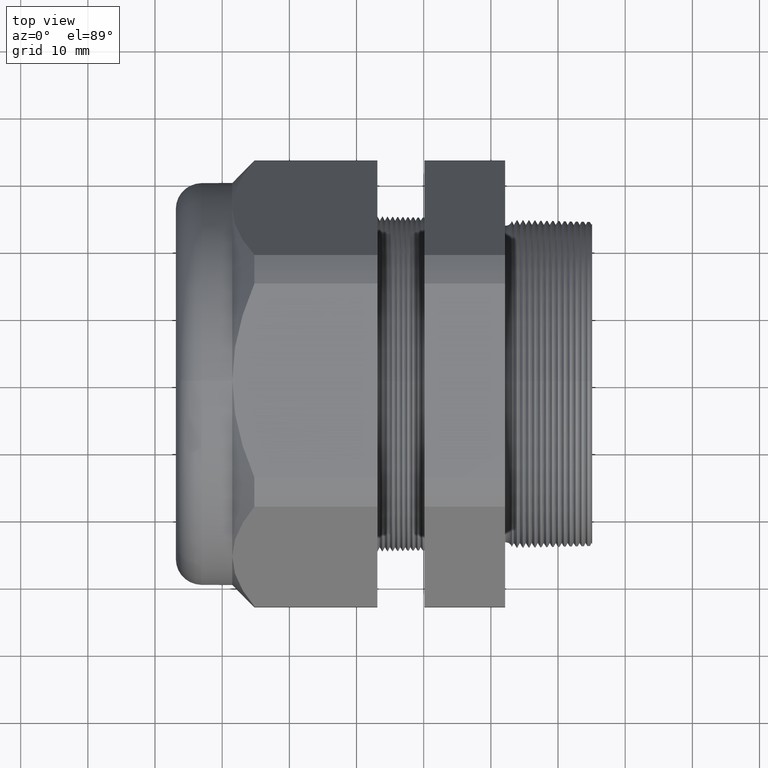
[diagram: clean part render]
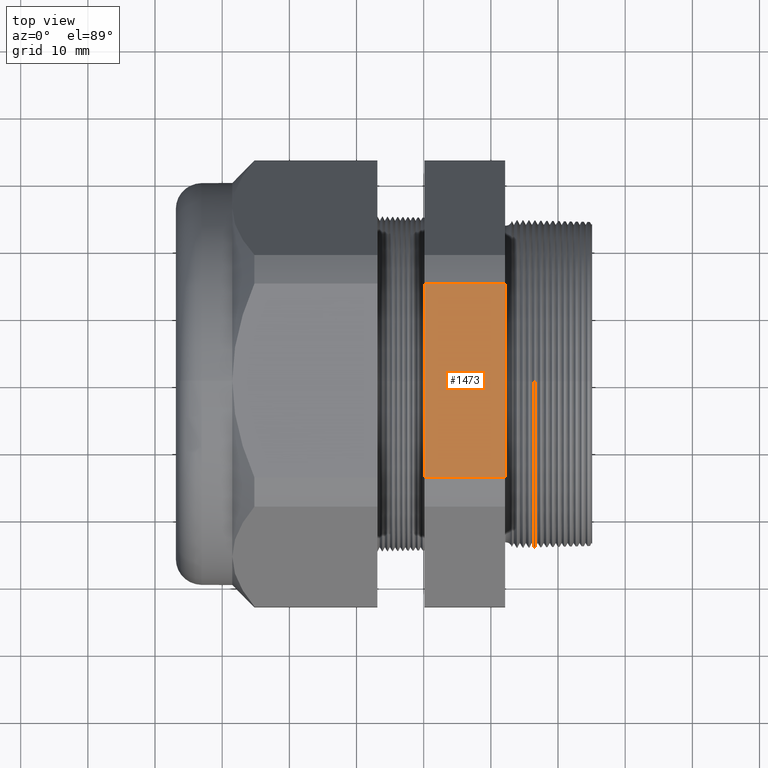
[diagram: same view with one face highlighted and labeled with its STEP entity id]
A machine part, top view. The second image highlights one B-rep face of the part: STEP entity #1473.
In plain terms, the highlighted planar face has unit normal (0, 0, 1).
Its self-contained STEP definition (entity closure, byte-faithful):
#1306 = VERTEX_POINT ( 'NONE', #4162 ) ;
#1308 = EDGE_CURVE ( 'NONE', #1306, #1309, #4161, .T. ) ;
#1309 = VERTEX_POINT ( 'NONE', #4157 ) ;
#1469 = EDGE_CURVE ( 'NONE', #1309, #1470, #4393, .T. ) ;
#1470 = VERTEX_POINT ( 'NONE', #4453 ) ;
#1473 = ADVANCED_FACE ( 'NONE', ( #4452 ), #4446, .T. ) ;
#1474 = EDGE_LOOP ( 'NONE', ( #1475, #1476, #1477, #1480 ) ) ;
#1475 = ORIENTED_EDGE ( 'NONE', *, *, #1469, .F. ) ;
#1476 = ORIENTED_EDGE ( 'NONE', *, *, #1308, .F. ) ;
#1477 = ORIENTED_EDGE ( 'NONE', *, *, #1478, .T. ) ;
#1478 = EDGE_CURVE ( 'NONE', #1306, #1479, #4441, .T. ) ;
#1479 = VERTEX_POINT ( 'NONE', #4437 ) ;
#1480 = ORIENTED_EDGE ( 'NONE', *, *, #1481, .F. ) ;
#1481 = EDGE_CURVE ( 'NONE', #1470, #1479, #4436, .T. ) ;
#4157 = CARTESIAN_POINT ( 'NONE',  ( -0.3100000000000000000, -0.5684857430050480600, 1.179999999999999300 ) ) ;
#4158 = DIRECTION ( 'NONE',  ( 0.0000000000000000000, -1.000000000000000000, 0.0000000000000000000 ) ) ;
#4159 = VECTOR ( 'NONE', #4158, 39.37007874015748100 ) ;
#4160 = CARTESIAN_POINT ( 'NONE',  ( -0.3100000000000000000, 2.359999999999999900, 1.179999999999999700 ) ) ;
#4161 = LINE ( 'NONE', #4160, #4159 ) ;
#4162 = CARTESIAN_POINT ( 'NONE',  ( -0.3100000000000000000, 0.5684857430050476200, 1.179999999999999700 ) ) ;
#4390 = DIRECTION ( 'NONE',  ( -1.000000000000000000, 0.0000000000000000000, 0.0000000000000000000 ) ) ;
#4391 = VECTOR ( 'NONE', #4390, 39.37007874015748100 ) ;
#4392 = CARTESIAN_POINT ( 'NONE',  ( 0.2000000000000000400, -0.5684857430050480600, 1.179999999999999300 ) ) ;
#4393 = LINE ( 'NONE', #4392, #4391 ) ;
#4433 = DIRECTION ( 'NONE',  ( 0.0000000000000000000, 1.000000000000000000, 0.0000000000000000000 ) ) ;
#4434 = VECTOR ( 'NONE', #4433, 39.37007874015748100 ) ;
#4435 = CARTESIAN_POINT ( 'NONE',  ( -0.7824400000000001400, 2.359999999999999900, 1.179999999999999700 ) ) ;
#4436 = LINE ( 'NONE', #4435, #4434 ) ;
#4437 = CARTESIAN_POINT ( 'NONE',  ( -0.7824400000000001400, 0.5684857430050476200, 1.179999999999999700 ) ) ;
#4438 = DIRECTION ( 'NONE',  ( -1.000000000000000000, 0.0000000000000000000, 0.0000000000000000000 ) ) ;
#4439 = VECTOR ( 'NONE', #4438, 39.37007874015748100 ) ;
#4440 = CARTESIAN_POINT ( 'NONE',  ( 0.2000000000000000400, 0.5684857430050476200, 1.179999999999999700 ) ) ;
#4441 = LINE ( 'NONE', #4440, #4439 ) ;
#4442 = DIRECTION ( 'NONE',  ( 1.000000000000000000, 0.0000000000000000000, 0.0000000000000000000 ) ) ;
#4443 = DIRECTION ( 'NONE',  ( 0.0000000000000000000, 0.0000000000000000000, 1.000000000000000000 ) ) ;
#4444 = CARTESIAN_POINT ( 'NONE',  ( 0.2000000000000000400, -0.5684857430050476200, 1.179999999999999700 ) ) ;
#4445 = AXIS2_PLACEMENT_3D ( 'NONE', #4444, #4443, #4442 ) ;
#4446 = PLANE ( 'NONE',  #4445 ) ;
#4452 = FACE_OUTER_BOUND ( 'NONE', #1474, .T. ) ;
#4453 = CARTESIAN_POINT ( 'NONE',  ( -0.7824400000000001400, -0.5684857430050480600, 1.179999999999999300 ) ) ;